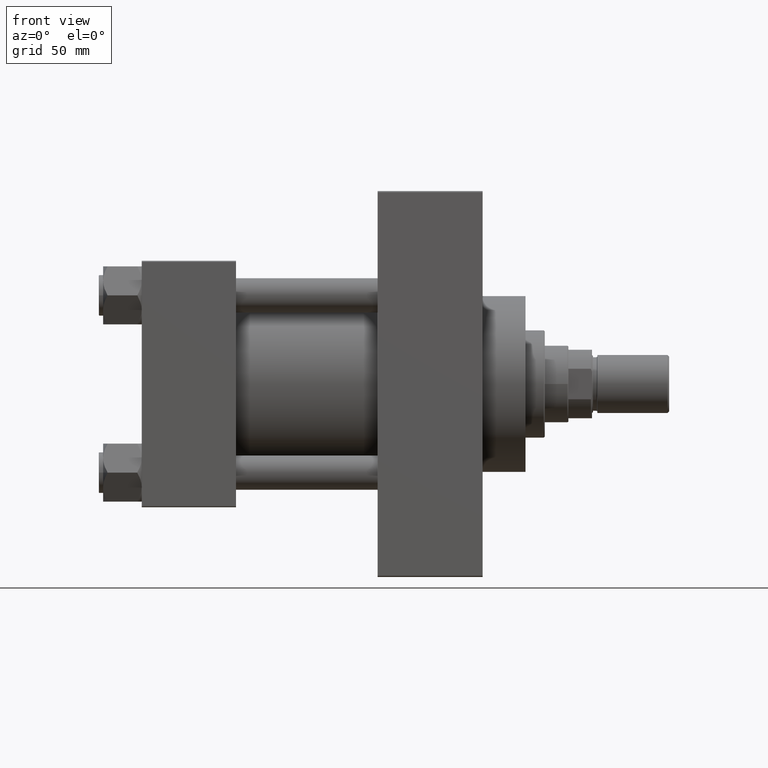
[diagram: clean part render]
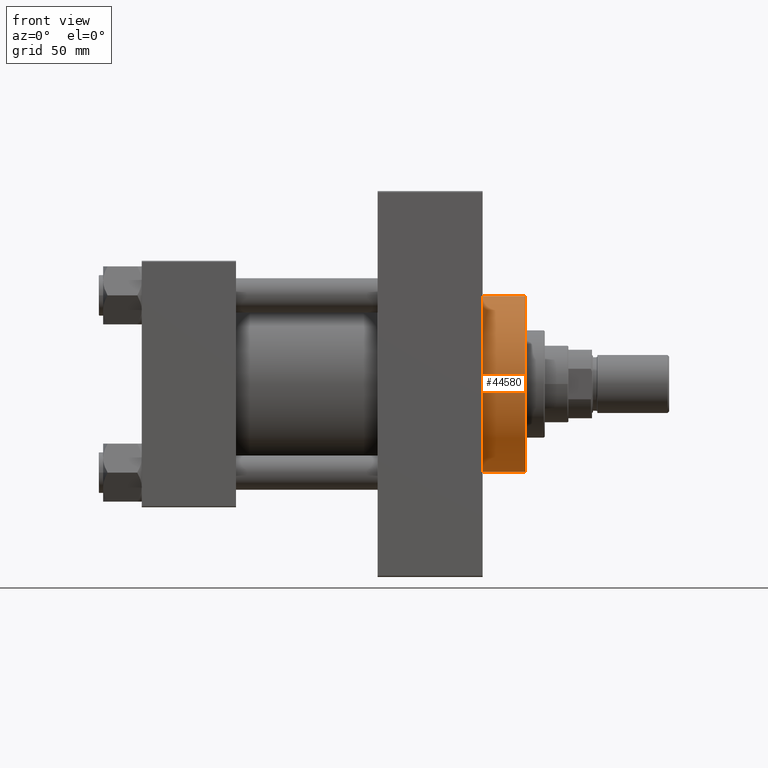
[diagram: same view with one face highlighted and labeled with its STEP entity id]
A machine part, front view. The second image highlights one B-rep face of the part: STEP entity #44580.
In plain terms, the highlighted cylindrical surface (partial cylindrical patch) has radius 41 mm, axis along (-1, -0, -0).
Its self-contained STEP definition (entity closure, byte-faithful):
#1899 = DIRECTION ( 'NONE',  ( 0.000000000000000000, 0.000000000000000000, 1.000000000000000000 ) ) ;
#1926 = EDGE_LOOP ( 'NONE', ( #14834, #24132, #17069, #20653 ) ) ;
#2269 = DIRECTION ( 'NONE',  ( 1.000000000000000000, 0.000000000000000000, 0.000000000000000000 ) ) ;
#3681 = DIRECTION ( 'NONE',  ( 0.000000000000000000, 0.000000000000000000, -1.000000000000000000 ) ) ;
#4790 = CARTESIAN_POINT ( 'NONE',  ( 179.0000000000000000, 5.021051876504148963E-15, -41.00000000000000000 ) ) ;
#5321 = CARTESIAN_POINT ( 'NONE',  ( 179.0000000000000000, 0.000000000000000000, 0.000000000000000000 ) ) ;
#6219 = CARTESIAN_POINT ( 'NONE',  ( 159.0000000000000000, 5.021051876504148963E-15, -41.00000000000000000 ) ) ;
#7958 = AXIS2_PLACEMENT_3D ( 'NONE', #9598, #2269, #17103 ) ;
#8590 = EDGE_CURVE ( 'NONE', #38592, #19653, #34251, .T. ) ;
#9224 = DIRECTION ( 'NONE',  ( -1.000000000000000000, -0.000000000000000000, -0.000000000000000000 ) ) ;
#9440 = LINE ( 'NONE', #32542, #36122 ) ;
#9598 = CARTESIAN_POINT ( 'NONE',  ( 179.0000000000000000, 0.000000000000000000, 0.000000000000000000 ) ) ;
#10539 = CARTESIAN_POINT ( 'NONE',  ( 179.0000000000000000, 0.000000000000000000, 41.00000000000000000 ) ) ;
#11407 = EDGE_CURVE ( 'NONE', #36931, #40875, #9440, .T. ) ;
#11493 = CIRCLE ( 'NONE', #38716, 41.00000000000000000 ) ;
#14131 = CARTESIAN_POINT ( 'NONE',  ( 159.0000000000000000, 0.000000000000000000, 41.00000000000000000 ) ) ;
#14834 = ORIENTED_EDGE ( 'NONE', *, *, #8590, .F. ) ;
#15456 = EDGE_CURVE ( 'NONE', #36931, #38592, #29701, .T. ) ;
#15727 = DIRECTION ( 'NONE',  ( -1.000000000000000000, -0.000000000000000000, -0.000000000000000000 ) ) ;
#17069 = ORIENTED_EDGE ( 'NONE', *, *, #11407, .T. ) ;
#17103 = DIRECTION ( 'NONE',  ( 0.000000000000000000, 0.000000000000000000, -1.000000000000000000 ) ) ;
#17461 = CARTESIAN_POINT ( 'NONE',  ( 179.0000000000000000, 5.021051876504148963E-15, -41.00000000000000000 ) ) ;
#19653 = VERTEX_POINT ( 'NONE', #6219 ) ;
#20653 = ORIENTED_EDGE ( 'NONE', *, *, #44162, .T. ) ;
#21082 = DIRECTION ( 'NONE',  ( -1.000000000000000000, -0.000000000000000000, -0.000000000000000000 ) ) ;
#24132 = ORIENTED_EDGE ( 'NONE', *, *, #15456, .F. ) ;
#25142 = VECTOR ( 'NONE', #15727, 1000.000000000000000 ) ;
#27242 = FACE_OUTER_BOUND ( 'NONE', #1926, .T. ) ;
#27482 = CYLINDRICAL_SURFACE ( 'NONE', #42626, 41.00000000000000000 ) ;
#29701 = CIRCLE ( 'NONE', #7958, 41.00000000000000000 ) ;
#32542 = CARTESIAN_POINT ( 'NONE',  ( 179.0000000000000000, 0.000000000000000000, 41.00000000000000000 ) ) ;
#32687 = CARTESIAN_POINT ( 'NONE',  ( 159.0000000000000000, 0.000000000000000000, 0.000000000000000000 ) ) ;
#34251 = LINE ( 'NONE', #4790, #25142 ) ;
#36122 = VECTOR ( 'NONE', #21082, 1000.000000000000000 ) ;
#36931 = VERTEX_POINT ( 'NONE', #10539 ) ;
#38592 = VERTEX_POINT ( 'NONE', #17461 ) ;
#38716 = AXIS2_PLACEMENT_3D ( 'NONE', #32687, #44568, #3681 ) ;
#40875 = VERTEX_POINT ( 'NONE', #14131 ) ;
#42626 = AXIS2_PLACEMENT_3D ( 'NONE', #5321, #9224, #1899 ) ;
#44162 = EDGE_CURVE ( 'NONE', #40875, #19653, #11493, .T. ) ;
#44568 = DIRECTION ( 'NONE',  ( 1.000000000000000000, 0.000000000000000000, 0.000000000000000000 ) ) ;
#44580 = ADVANCED_FACE ( 'NONE', ( #27242 ), #27482, .T. ) ;